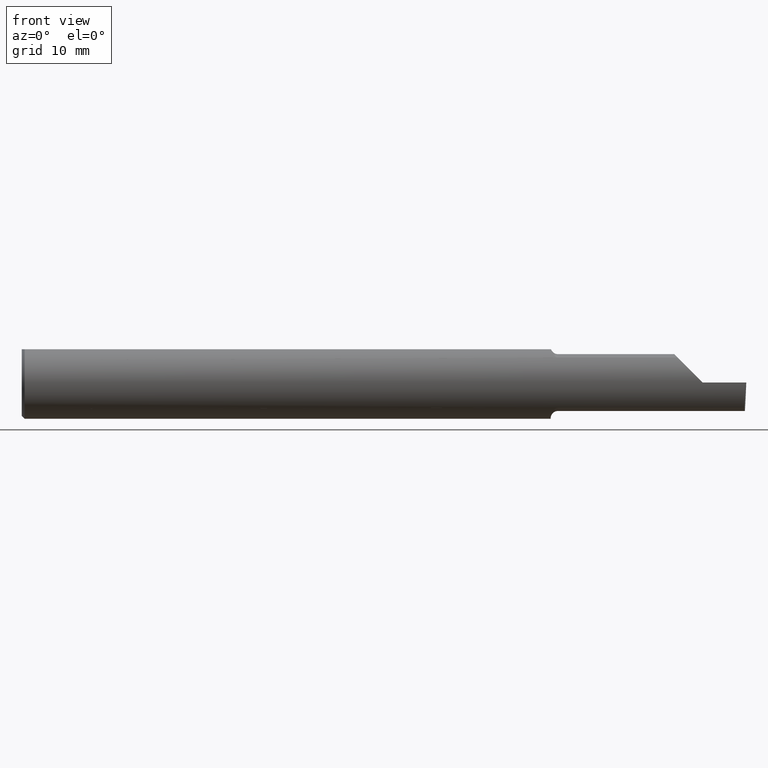
[diagram: clean part render]
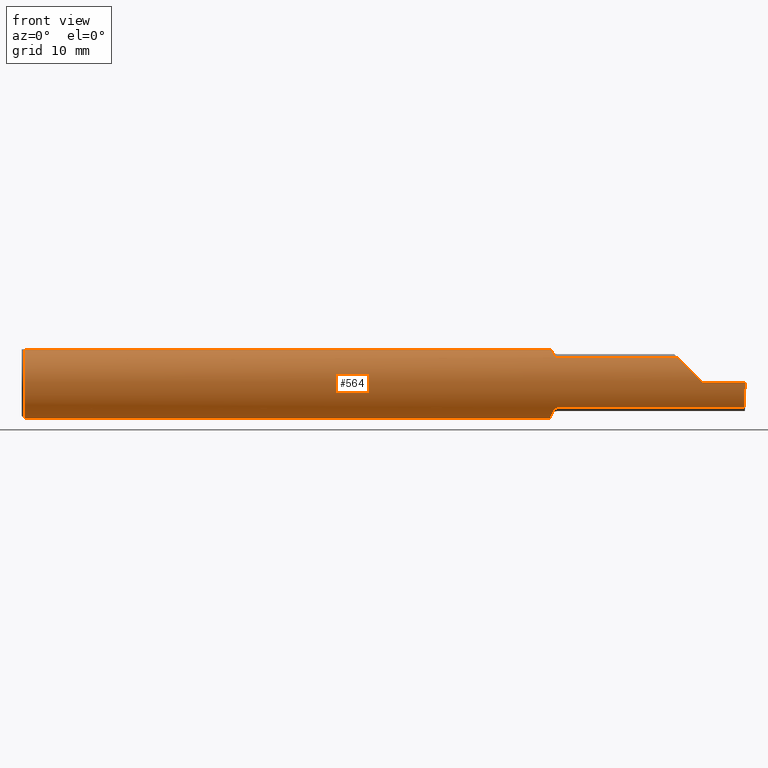
[diagram: same view with one face highlighted and labeled with its STEP entity id]
A machine part, front view. The second image highlights one B-rep face of the part: STEP entity #564.
In plain terms, the highlighted cylindrical surface (edge-blend (fillet) strip) has radius 3.175 mm, axis along (-1, -0, -0).
Its self-contained STEP definition (entity closure, byte-faithful):
#6 = CARTESIAN_POINT ( 'NONE',  ( 1.824999999999999956, -0.02763636363636371579, -0.1219066503721543404 ) ) ;
#18 = CARTESIAN_POINT ( 'NONE',  ( 0.01000000000000042348, 0.000000000000000000, 0.000000000000000000 ) ) ;
#27 = FACE_OUTER_BOUND ( 'NONE', #494, .T. ) ;
#28 = CARTESIAN_POINT ( 'NONE',  ( 2.350000000000000089, -0.1250000000000000278, 1.836970198721028825E-17 ) ) ;
#40 = VERTEX_POINT ( 'NONE', #447 ) ;
#44 = CARTESIAN_POINT ( 'NONE',  ( 1.825730677800976975, -0.04400000000000004602, -0.1169999999999999790 ) ) ;
#70 = EDGE_CURVE ( 'NONE', #40, #162, #263, .T. ) ;
#72 = VERTEX_POINT ( 'NONE', #495 ) ;
#74 = VECTOR ( 'NONE', #311, 39.37007874015748143 ) ;
#76 = CARTESIAN_POINT ( 'NONE',  ( 2.493546555653489705, -0.09042045454545441507, -0.08630840862739512509 ) ) ;
#95 = CARTESIAN_POINT ( 'NONE',  ( 1.829267307214414329, -0.06631395538221114550, 0.1063681193389249130 ) ) ;
#106 = CARTESIAN_POINT ( 'NONE',  ( 1.847488493957805566, -0.09042045454585206921, 0.08630840862697858329 ) ) ;
#112 = VERTEX_POINT ( 'NONE', #270 ) ;
#122 = EDGE_CURVE ( 'NONE', #290, #40, #735, .T. ) ;
#131 = ORIENTED_EDGE ( 'NONE', *, *, #504, .T. ) ;
#137 = ORIENTED_EDGE ( 'NONE', *, *, #122, .F. ) ;
#139 = DIRECTION ( 'NONE',  ( 0.000000000000000000, 0.000000000000000000, -1.000000000000000000 ) ) ;
#147 = CARTESIAN_POINT ( 'NONE',  ( 3.749399456654637998E-32, -0.1249999999999999861, 3.061616997868380183E-16 ) ) ;
#153 = ORIENTED_EDGE ( 'NONE', *, *, #268, .F. ) ;
#155 = DIRECTION ( 'NONE',  ( 1.000000000000000000, 0.000000000000000000, 0.000000000000000000 ) ) ;
#156 = VECTOR ( 'NONE', #449, 39.37007874015748143 ) ;
#162 = VERTEX_POINT ( 'NONE', #222 ) ;
#177 = VERTEX_POINT ( 'NONE', #456 ) ;
#179 = CARTESIAN_POINT ( 'NONE',  ( 1.825730677800976975, -0.04400000000000004602, -0.1169999999999999790 ) ) ;
#186 = CARTESIAN_POINT ( 'NONE',  ( 2.493546555653489705, -0.09042045454545441507, -0.08630840862739512509 ) ) ;
#189 = CARTESIAN_POINT ( 'NONE',  ( 0.000000000000000000, -0.04898979485566374442, 0.1149999999999999217 ) ) ;
#190 = ORIENTED_EDGE ( 'NONE', *, *, #466, .F. ) ;
#197 = AXIS2_PLACEMENT_3D ( 'NONE', #524, #155, #463 ) ;
#198 = CARTESIAN_POINT ( 'NONE',  ( 1.824999999999999956, -0.03321131449419137405, -0.1206428032506770415 ) ) ;
#204 = CARTESIAN_POINT ( 'NONE',  ( 0.000000000000000000, 0.04898979485566374442, 0.1149999999999999217 ) ) ;
#218 = EDGE_CURVE ( 'NONE', #450, #230, #281, .T. ) ;
#222 = CARTESIAN_POINT ( 'NONE',  ( 0.01000000000000042348, 0.04898979485566374442, 0.1149999999999999217 ) ) ;
#225 = CARTESIAN_POINT ( 'NONE',  ( 1.826195811990451112, -0.04900285419228611605, -0.1151185847482000674 ) ) ;
#227 = ORIENTED_EDGE ( 'NONE', *, *, #601, .T. ) ;
#229 = CARTESIAN_POINT ( 'NONE',  ( 1.827426556614086817, -0.05801934803182792061, 0.1111534264545077366 ) ) ;
#230 = VERTEX_POINT ( 'NONE', #593 ) ;
#232 = VECTOR ( 'NONE', #245, 39.37007874015748143 ) ;
#239 = EDGE_CURVE ( 'NONE', #460, #72, #421, .T. ) ;
#242 = CARTESIAN_POINT ( 'NONE',  ( 1.826278290187167919, -0.04898979485482030799, 0.1149999999999999217 ) ) ;
#245 = DIRECTION ( 'NONE',  ( 1.000000000000000000, 0.000000000000000000, 0.000000000000000000 ) ) ;
#246 = VERTEX_POINT ( 'NONE', #44 ) ;
#247 = DIRECTION ( 'NONE',  ( -1.000000000000000000, -0.000000000000000000, -0.000000000000000000 ) ) ;
#260 = CARTESIAN_POINT ( 'NONE',  ( 0.01000000000000042348, 0.000000000000000000, 0.000000000000000000 ) ) ;
#263 = LINE ( 'NONE', #204, #624 ) ;
#268 = EDGE_CURVE ( 'NONE', #339, #246, #488, .T. ) ;
#269 = DIRECTION ( 'NONE',  ( 1.000000000000000000, 0.000000000000000000, 0.000000000000000000 ) ) ;
#270 = CARTESIAN_POINT ( 'NONE',  ( 1.849999999999999867, -0.09042045454545430405, 0.08630840862739518060 ) ) ;
#277 = CYLINDRICAL_SURFACE ( 'NONE', #766, 0.1250000000000000000 ) ;
#281 =( BOUNDED_CURVE ( )  B_SPLINE_CURVE ( 3, ( #28, #724, #403, #338 ),
 .UNSPECIFIED., .F., .F. ) 
 B_SPLINE_CURVE_WITH_KNOTS ( ( 4, 4 ),
 ( 4.712388980384689674, 5.474523801125208422 ),
 .UNSPECIFIED. ) 
 CURVE ( )  GEOMETRIC_REPRESENTATION_ITEM ( )  RATIONAL_B_SPLINE_CURVE ( ( 1.000000000000000000, 0.9521787881681380572, 0.9521787881681380572, 1.000000000000000000 ) ) 
 REPRESENTATION_ITEM ( '' )  );
#290 = VERTEX_POINT ( 'NONE', #296 ) ;
#291 = CARTESIAN_POINT ( 'NONE',  ( 1.839282510427138639, -0.08510692115743009878, -0.09158169095606859267 ) ) ;
#296 = CARTESIAN_POINT ( 'NONE',  ( 1.824999999999999956, -0.02763636363636371579, -0.1219066503721543404 ) ) ;
#298 = EDGE_CURVE ( 'NONE', #708, #112, #379, .T. ) ;
#311 = DIRECTION ( 'NONE',  ( 1.000000000000000000, 0.000000000000000000, 0.000000000000000000 ) ) ;
#316 = VECTOR ( 'NONE', #332, 39.37007874015748143 ) ;
#323 = LINE ( 'NONE', #147, #316 ) ;
#326 = AXIS2_PLACEMENT_3D ( 'NONE', #260, #559, #139 ) ;
#332 = DIRECTION ( 'NONE',  ( -1.000000000000000000, -0.000000000000000000, -0.000000000000000000 ) ) ;
#337 = LINE ( 'NONE', #592, #156 ) ;
#338 = CARTESIAN_POINT ( 'NONE',  ( 2.263691591372603895, -0.09042045454545419303, 0.08630840862739529162 ) ) ;
#339 = VERTEX_POINT ( 'NONE', #446 ) ;
#342 = CARTESIAN_POINT ( 'NONE',  ( 1.828809610961340759, -0.06315583524588906650, -0.1079992965090798979 ) ) ;
#347 = CARTESIAN_POINT ( 'NONE',  ( 1.847250989814109179, -0.09042045454545442895, -0.08630840862739511121 ) ) ;
#351 = CARTESIAN_POINT ( 'NONE',  ( 1.849999999999999867, -0.09042045454545430405, 0.08630840862739518060 ) ) ;
#357 = EDGE_CURVE ( 'NONE', #112, #230, #749, .T. ) ;
#359 = ORIENTED_EDGE ( 'NONE', *, *, #218, .T. ) ;
#372 = ORIENTED_EDGE ( 'NONE', *, *, #239, .T. ) ;
#379 = B_SPLINE_CURVE_WITH_KNOTS ( 'NONE', 3,
 ( #242, #229, #95, #549, #476, #736, #533, #490, #106, #351 ),
 .UNSPECIFIED., .F., .F.,
 ( 4, 2, 2, 2, 4 ),
 ( 5.067393806483457764E-07, 0.0007430328995834972359, 0.001114295979684921251, 0.001299927519735632553, 0.001485559059786344289 ),
 .UNSPECIFIED. ) ;
#383 = EDGE_CURVE ( 'NONE', #246, #290, #439, .T. ) ;
#389 = CIRCLE ( 'NONE', #613, 0.1250000000000000000 ) ;
#403 = CARTESIAN_POINT ( 'NONE',  ( 2.287236475649208511, -0.1128945894460737787, 0.06276352435079125824 ) ) ;
#413 = CARTESIAN_POINT ( 'NONE',  ( 2.493976598891079810, -0.1128945894460738203, -0.06276352435079111947 ) ) ;
#421 =( BOUNDED_CURVE ( )  B_SPLINE_CURVE ( 3, ( #76, #413, #486, #670 ),
 .UNSPECIFIED., .F., .T. ) 
 B_SPLINE_CURVE_WITH_KNOTS ( ( 4, 4 ),
 ( 0.3451966888490367591, 1.107331509589553287 ),
 .UNSPECIFIED. ) 
 CURVE ( )  GEOMETRIC_REPRESENTATION_ITEM ( )  RATIONAL_B_SPLINE_CURVE ( ( 1.000000000000000000, 0.9521787881681383903, 0.9521787881681383903, 1.000000000000000000 ) ) 
 REPRESENTATION_ITEM ( '' )  );
#433 = CARTESIAN_POINT ( 'NONE',  ( 1.825730677800976975, -0.04400000000000004602, -0.1169999999999999790 ) ) ;
#434 = ORIENTED_EDGE ( 'NONE', *, *, #719, .T. ) ;
#436 = LINE ( 'NONE', #189, #232 ) ;
#439 = B_SPLINE_CURVE_WITH_KNOTS ( 'NONE', 3,
 ( #433, #688, #198, #6 ),
 .UNSPECIFIED., .F., .F.,
 ( 4, 4 ),
 ( 0.001645996930207818589, 0.002084692492981599955 ),
 .UNSPECIFIED. ) ;
#446 = CARTESIAN_POINT ( 'NONE',  ( 1.849999999999999867, -0.09042045454545437344, -0.08630840862739513897 ) ) ;
#447 = CARTESIAN_POINT ( 'NONE',  ( 1.824999999999999956, 0.04898979485566374442, 0.1149999999999999217 ) ) ;
#449 = DIRECTION ( 'NONE',  ( -1.000000000000000000, -0.000000000000000000, -0.000000000000000000 ) ) ;
#450 = VERTEX_POINT ( 'NONE', #631 ) ;
#456 = CARTESIAN_POINT ( 'NONE',  ( 0.01000000000000042348, -0.04898979485566374442, 0.1149999999999999217 ) ) ;
#460 = VERTEX_POINT ( 'NONE', #186 ) ;
#462 = DIRECTION ( 'NONE',  ( -1.000000000000000000, -0.000000000000000000, -0.000000000000000000 ) ) ;
#463 = DIRECTION ( 'NONE',  ( 0.000000000000000000, 0.000000000000000000, -1.000000000000000000 ) ) ;
#466 = EDGE_CURVE ( 'NONE', #177, #708, #436, .T. ) ;
#476 = CARTESIAN_POINT ( 'NONE',  ( 1.835996102358147919, -0.08116363444194668597, 0.09515685373904948785 ) ) ;
#486 = CARTESIAN_POINT ( 'NONE',  ( 2.494820567471968786, -0.1250000000000000000, -0.03254916765648419030 ) ) ;
#487 = VERTEX_POINT ( 'NONE', #783 ) ;
#488 = B_SPLINE_CURVE_WITH_KNOTS ( 'NONE', 3,
 ( #802, #347, #666, #809, #291, #744, #544, #739, #342, #540, #225, #179 ),
 .UNSPECIFIED., .F., .F.,
 ( 4, 2, 2, 2, 2, 4 ),
 ( 1.964009442425878487E-07, 0.0002059214671021853500, 0.0004116465332601281077, 0.0008230966655760250071, 0.001234546797891921581, 0.001645996930207818589 ),
 .UNSPECIFIED. ) ;
#490 = CARTESIAN_POINT ( 'NONE',  ( 1.845169762358873644, -0.08954173371311466290, 0.08723520050116025104 ) ) ;
#494 = EDGE_LOOP ( 'NONE', ( #668, #372, #131, #359, #741, #672, #190, #227, #434, #501, #137, #740, #153 ) ) ;
#495 = CARTESIAN_POINT ( 'NONE',  ( 2.495957382595297869, -0.1250000000000000000, 0.000000000000000000 ) ) ;
#499 = CIRCLE ( 'NONE', #326, 0.1250000000000000000 ) ;
#501 = ORIENTED_EDGE ( 'NONE', *, *, #70, .F. ) ;
#504 = EDGE_CURVE ( 'NONE', #72, #450, #323, .T. ) ;
#512 = DIRECTION ( 'NONE',  ( 0.000000000000000000, 0.000000000000000000, -1.000000000000000000 ) ) ;
#524 = CARTESIAN_POINT ( 'NONE',  ( 1.824999999999999956, 0.000000000000000000, 0.000000000000000000 ) ) ;
#533 = CARTESIAN_POINT ( 'NONE',  ( 1.841446811421532326, -0.08721672169474553593, 0.08955973280246692925 ) ) ;
#540 = CARTESIAN_POINT ( 'NONE',  ( 1.826893175330810415, -0.05388688644707115283, -0.1129101901561701399 ) ) ;
#544 = CARTESIAN_POINT ( 'NONE',  ( 1.833239374200247518, -0.07597265459956464850, -0.09939534496909259442 ) ) ;
#549 = CARTESIAN_POINT ( 'NONE',  ( 1.834055883886138716, -0.07758562614434559579, 0.09811804109501627569 ) ) ;
#559 = DIRECTION ( 'NONE',  ( 1.000000000000000000, 0.000000000000000000, 0.000000000000000000 ) ) ;
#564 = ADVANCED_FACE ( 'NONE', ( #27 ), #277, .T. ) ;
#588 = EDGE_CURVE ( 'NONE', #460, #339, #337, .T. ) ;
#592 = CARTESIAN_POINT ( 'NONE',  ( 2.159734615000000080, -0.09042045454545441507, -0.08630840862739512509 ) ) ;
#593 = CARTESIAN_POINT ( 'NONE',  ( 2.263691591372603895, -0.09042045454545419303, 0.08630840862739529162 ) ) ;
#601 = EDGE_CURVE ( 'NONE', #177, #487, #389, .T. ) ;
#613 = AXIS2_PLACEMENT_3D ( 'NONE', #18, #269, #512 ) ;
#624 = VECTOR ( 'NONE', #247, 39.37007874015748143 ) ;
#631 = CARTESIAN_POINT ( 'NONE',  ( 2.350000000000000089, -0.1250000000000000278, 1.836970198721028825E-17 ) ) ;
#666 = CARTESIAN_POINT ( 'NONE',  ( 1.844768270659623566, -0.08937924045984944887, -0.08740614068309868201 ) ) ;
#668 = ORIENTED_EDGE ( 'NONE', *, *, #588, .F. ) ;
#670 = CARTESIAN_POINT ( 'NONE',  ( 2.495957382595297869, -0.1250000000000000000, 0.000000000000000000 ) ) ;
#672 = ORIENTED_EDGE ( 'NONE', *, *, #298, .F. ) ;
#688 = CARTESIAN_POINT ( 'NONE',  ( 1.825234743326751952, -0.03866586649758532029, -0.1190059989239850707 ) ) ;
#708 = VERTEX_POINT ( 'NONE', #743 ) ;
#719 = EDGE_CURVE ( 'NONE', #487, #162, #499, .T. ) ;
#724 = CARTESIAN_POINT ( 'NONE',  ( 2.317450832343515454, -0.1250000000000000000, 0.03254916765648425969 ) ) ;
#735 = CIRCLE ( 'NONE', #197, 0.1250000000000000000 ) ;
#736 = CARTESIAN_POINT ( 'NONE',  ( 1.839945076695470139, -0.08578123596776277004, 0.09094459933485994629 ) ) ;
#739 = CARTESIAN_POINT ( 'NONE',  ( 1.830023755285530740, -0.06757875350159910088, -0.1052824340695055066 ) ) ;
#740 = ORIENTED_EDGE ( 'NONE', *, *, #383, .F. ) ;
#741 = ORIENTED_EDGE ( 'NONE', *, *, #357, .F. ) ;
#743 = CARTESIAN_POINT ( 'NONE',  ( 1.826278290187167919, -0.04898979485482030799, 0.1149999999999999217 ) ) ;
#744 = CARTESIAN_POINT ( 'NONE',  ( 1.835190181894028605, -0.07991573988362411785, -0.09622915934337318566 ) ) ;
#749 = LINE ( 'NONE', #768, #74 ) ;
#766 = AXIS2_PLACEMENT_3D ( 'NONE', #786, #462, #773 ) ;
#768 = CARTESIAN_POINT ( 'NONE',  ( 2.159734615000000080, -0.09042045454545441507, 0.08630840862739512509 ) ) ;
#773 = DIRECTION ( 'NONE',  ( 0.000000000000000000, 0.000000000000000000, 1.000000000000000000 ) ) ;
#783 = CARTESIAN_POINT ( 'NONE',  ( 0.01000000000000042348, 0.000000000000000000, -0.1250000000000000000 ) ) ;
#786 = CARTESIAN_POINT ( 'NONE',  ( 0.000000000000000000, 0.000000000000000000, 0.000000000000000000 ) ) ;
#802 = CARTESIAN_POINT ( 'NONE',  ( 1.849999999999999867, -0.09042045454545437344, -0.08630840862739513897 ) ) ;
#809 = CARTESIAN_POINT ( 'NONE',  ( 1.840850385411617385, -0.08673035960621022777, -0.09003514189954206492 ) ) ;